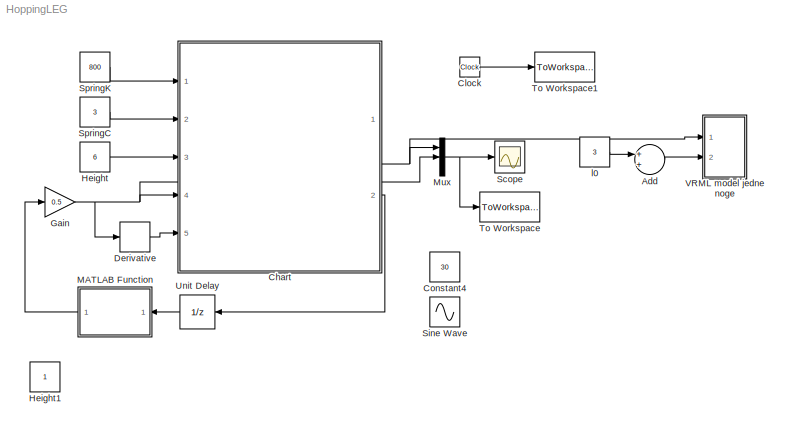
MODEL HoppingLEG
KIND model
BLOCK [Sum] Add
  InputSameDT = off
  OutDataTypeStr = Inherit: Inherit via internal rule
  Ports = [2, 1]
  SID = 80
  SaturateOnIntegerOverflow = off
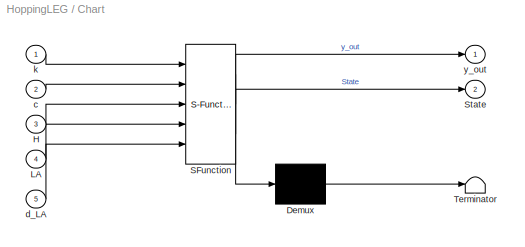
BLOCK [SubSystem] Chart
  ErrorFcn = Stateflow.Translate.translate
  FunctionWithSeparateData = off
  MaskDescription = Stateflow diagram
  MaskDisplay = plot(sf('Private','sfblk','xIcon'),sf('Private','sfblk','yIcon'));text(0.5,0,sf('Private', 'sfblk', 'tIcon'),'HorizontalAl','Center','VerticalAl','Bottom');
  MaskHideContents = off
  MaskIconFrame = off
  MaskIconOpaque = off
  MaskIconRotate = none
  MaskIconUnits = autoscale
  MaskPortRotate = default
  MaskSelfModifiable = on
  MaskType = Stateflow
  MinAlgLoopOccurrences = off
  Opaque = off
  PermitHierarchicalResolution = ExplicitOnly
  Ports = [5, 2]
  PropExecContextOutsideSubsystem = off
  RTWSystemCode = Auto
  RequestExecContextInheritance = off
  SID = 1
  TreatAsAtomicUnit = on
BLOCK [Demux] Chart/ Demux 
  Outputs = 1
  Ports = [1, 1]
  SID = 1::14
BLOCK [S-Function] Chart/ SFunction 
  EnableBusSupport = on
  FunctionName = sf_sfun
  PortCounts = [5 3]
  Ports = [5, 3]
  SID = 1::13
  Tag = Stateflow S-Function HoppingLEG 1
BLOCK [Terminator] Chart/ Terminator 
  SID = 1::18
BLOCK [Inport] Chart/H
  IconDisplay = Port number
  Port = 3
  SID = 1::28
BLOCK [Inport] Chart/LA
  IconDisplay = Port number
  Port = 4
  SID = 1::25
BLOCK [Outport] Chart/State
  IconDisplay = Port number
  Port = 2
  SID = 1::30
BLOCK [Inport] Chart/c
  IconDisplay = Port number
  Port = 2
  SID = 1::27
BLOCK [Inport] Chart/d_LA
  IconDisplay = Port number
  Port = 5
  SID = 1::24
BLOCK [Inport] Chart/k
  IconDisplay = Port number
  SID = 1::29
BLOCK [Outport] Chart/y_out
  IconDisplay = Port number
  SID = 1::20
BLOCK [Clock] Clock
  Decimation = 10
  SID = 14
BLOCK [Constant] Constant4
  SID = 59
  Value = 30
BLOCK [Derivative] Derivative
  SID = 6
BLOCK [Gain] Gain
  Gain = 0.5
  OutDataTypeStr = Inherit: Inherit via internal rule
  ParamDataTypeStr = Inherit: Inherit via internal rule
  SID = 25
  SaturateOnIntegerOverflow = off
BLOCK [Constant] Height
  SID = 21
  Value = 6
BLOCK [Constant] Height1
  SID = 78
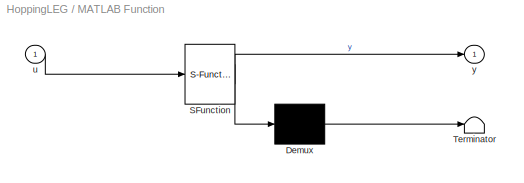
BLOCK [SubSystem] MATLAB Function
  ErrorFcn = Stateflow.Translate.translate
  FunctionWithSeparateData = off
  MaskDescription = Embedded MATLAB block
  MaskDisplay = bgColor = Simulink.Root.ColorString2Rgb(get_param(gcbh, 'BackgroundColor')); image(imread('private/eml_membrane_16.png','png','BackgroundColor',bgColor(1:3)),'center'); disp([10 10 'fcn']);
  MaskHideContents = off
  MaskIconFrame = on
  MaskIconOpaque = off
  MaskIconRotate = none
  MaskIconUnits = normalized
  MaskPortRotate = default
  MaskSelfModifiable = on
  MaskType = Stateflow
  MinAlgLoopOccurrences = off
  Opaque = off
  PermitHierarchicalResolution = ExplicitOnly
  Ports = [1, 1]
  PropExecContextOutsideSubsystem = off
  RTWSystemCode = Auto
  RequestExecContextInheritance = off
  SID = 58
  TreatAsAtomicUnit = on
BLOCK [Demux] MATLAB Function/ Demux 
  Outputs = 1
  Ports = [1, 1]
  SID = 58::15
BLOCK [S-Function] MATLAB Function/ SFunction 
  EnableBusSupport = on
  FunctionName = sf_sfun
  PortCounts = [1 2]
  Ports = [1, 2]
  SID = 58::14
  Tag = Stateflow S-Function HoppingLEG 2
BLOCK [Terminator] MATLAB Function/ Terminator 
  SID = 58::17
BLOCK [Inport] MATLAB Function/u
  IconDisplay = Port number
  SID = 58::1
BLOCK [Outport] MATLAB Function/y
  IconDisplay = Port number
  SID = 58::5
BLOCK [Mux] Mux
  DisplayOption = bar
  Inputs = 3
  Ports = [3, 1]
  SID = 7
BLOCK [Scope] Scope
  DataFormat = StructureWithTime
  Floating = off
  NumInputPorts = 1
  Ports = [1]
  SID = 2
  SampleTime = 0
  TimeRange = 5
  YMax = 27.5
  YMin = 0
BLOCK [Sin] Sine Wave
  Amplitude = 5
  Frequency = 0.3
  Ports = [0, 1]
  SID = 60
  SampleTime = 0
BLOCK [Constant] SpringC
  SID = 20
  Value = 3
BLOCK [Constant] SpringK
  SID = 19
  Value = 800
BLOCK [ToWorkspace] To Workspace
  MaxDataPoints = inf
  Ports = [1]
  SID = 13
  SampleTime = Td
  SaveFormat = Array
  VariableName = output
BLOCK [ToWorkspace] To Workspace1
  MaxDataPoints = inf
  Ports = [1]
  SID = 15
  SampleTime = Td
  SaveFormat = Array
  VariableName = t
BLOCK [UnitDelay] Unit Delay
  InputProcessing = Elements as channels (sample based)
  SID = 24
  SampleTime = -1
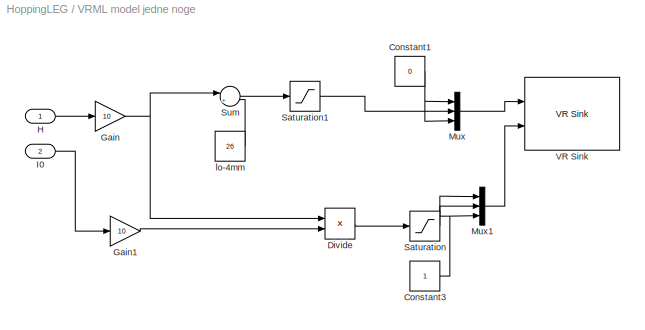
BLOCK [SubSystem] VRML model jedne noge
  FunctionWithSeparateData = off
  MaskHideContents = off
  MinAlgLoopOccurrences = off
  Opaque = off
  Ports = [2]
  PropExecContextOutsideSubsystem = off
  RTWSystemCode = Auto
  RequestExecContextInheritance = off
  SID = 62
BLOCK [Constant] VRML model jedne noge/Constant1
  SID = 65
  Value = 0
BLOCK [Constant] VRML model jedne noge/Constant3
  SID = 66
BLOCK [Product] VRML model jedne noge/Divide
  InputSameDT = off
  Inputs = */
  OutDataTypeStr = Inherit: Inherit via internal rule
  Ports = [2, 1]
  RndMeth = Floor
  SID = 67
  SaturateOnIntegerOverflow = off
BLOCK [Gain] VRML model jedne noge/Gain
  Gain = 10
  OutDataTypeStr = Inherit: Inherit via internal rule
  ParamDataTypeStr = Inherit: Inherit via internal rule
  SID = 76
  SaturateOnIntegerOverflow = off
BLOCK [Gain] VRML model jedne noge/Gain1
  Gain = 10
  OutDataTypeStr = Inherit: Inherit via internal rule
  ParamDataTypeStr = Inherit: Inherit via internal rule
  SID = 77
  SaturateOnIntegerOverflow = off
BLOCK [Inport] VRML model jedne noge/H
  IconDisplay = Port number
  SID = 63
BLOCK [Inport] VRML model jedne noge/I0
  IconDisplay = Port number
  Port = 2
  SID = 64
BLOCK [Mux] VRML model jedne noge/Mux
  DisplayOption = bar
  Inputs = 3
  Ports = [3, 1]
  SID = 68
BLOCK [Mux] VRML model jedne noge/Mux1
  DisplayOption = bar
  Inputs = 3
  Ports = [3, 1]
  SID = 69
BLOCK [Saturate] VRML model jedne noge/Saturation
  InputPortMap = u0
  LowerLimit = 0.5
  Ports = [1, 1]
  SID = 70
  UpperLimit = 1
BLOCK [Saturate] VRML model jedne noge/Saturation1
  InputPortMap = u0
  LowerLimit = 4
  Ports = [1, 1]
  SID = 71
  UpperLimit = 10000
BLOCK [Sum] VRML model jedne noge/Sum
  IconShape = round
  InputSameDT = off
  Inputs = |+-
  OutDataTypeStr = Inherit: Inherit via internal rule
  Ports = [2, 1]
  SID = 72
  SaturateOnIntegerOverflow = off
BLOCK [Reference] VRML model jedne noge/VR Sink  REF=vrlib/VR Sink
  AutoView = off
  FieldsWritten = ALFA.translation.3.1.1.double#Opruga.scale.3.1.1.double
  Ports = [2]
  RemoteChange = off
  RemoteView = on
  SID = 73
  SampleTime = -1
  SourceBlock = vrlib/VR Sink
  SourceType = Virtual Reality Sink
  VideoDimensions = []
  ViewEnable = on
  WorldFileName = <path>
BLOCK [Constant] VRML model jedne noge/lo-4mm
  SID = 74
  Value = 26
BLOCK [Constant] l0
  SID = 75
  Value = 3
LINE Add:1 -> VRML model jedne noge:2
LINE Chart/ Demux :1 -> Chart/ Terminator :1
LINE Chart/ SFunction :1 -> Chart/ Demux :1
LINE Chart/ SFunction :2 -> Chart/y_out:1
LINE Chart/ SFunction :3 -> Chart/State:1
LINE Chart/H:1 -> Chart/ SFunction :3
LINE Chart/LA:1 -> Chart/ SFunction :4
LINE Chart/c:1 -> Chart/ SFunction :2
LINE Chart/d_LA:1 -> Chart/ SFunction :5
LINE Chart/k:1 -> Chart/ SFunction :1
NET Chart:1 -> Mux:1, VRML model jedne noge:1
LINE Chart:2 -> Unit Delay:1
LINE Clock:1 -> To Workspace1:1
LINE Derivative:1 -> Chart:5
NET Gain:1 -> Chart:4, Derivative:1, Mux:2
LINE Height:1 -> Chart:3
LINE MATLAB Function/ Demux :1 -> MATLAB Function/ Terminator :1
LINE MATLAB Function/ SFunction :1 -> MATLAB Function/ Demux :1
LINE MATLAB Function/ SFunction :2 -> MATLAB Function/y:1
LINE MATLAB Function/u:1 -> MATLAB Function/ SFunction :1
LINE MATLAB Function:1 -> Gain:1
NET Mux:1 -> Scope:1, To Workspace:1
LINE SpringC:1 -> Chart:2
LINE SpringK:1 -> Chart:1
LINE Unit Delay:1 -> MATLAB Function:1
NET VRML model jedne noge/Constant1:1 -> VRML model jedne noge/Mux:1, VRML model jedne noge/Mux:3
NET VRML model jedne noge/Constant3:1 -> VRML model jedne noge/Mux1:1, VRML model jedne noge/Mux1:3
LINE VRML model jedne noge/Divide:1 -> VRML model jedne noge/Saturation:1
LINE VRML model jedne noge/Gain1:1 -> VRML model jedne noge/Divide:2
NET VRML model jedne noge/Gain:1 -> VRML model jedne noge/Divide:1, VRML model jedne noge/Sum:1
LINE VRML model jedne noge/H:1 -> VRML model jedne noge/Gain:1
LINE VRML model jedne noge/I0:1 -> VRML model jedne noge/Gain1:1
LINE VRML model jedne noge/Mux1:1 -> VRML model jedne noge/VR Sink:2
LINE VRML model jedne noge/Mux:1 -> VRML model jedne noge/VR Sink:1
LINE VRML model jedne noge/Saturation1:1 -> VRML model jedne noge/Mux:2
LINE VRML model jedne noge/Saturation:1 -> VRML model jedne noge/Mux1:2
LINE VRML model jedne noge/Sum:1 -> VRML model jedne noge/Saturation1:1
LINE VRML model jedne noge/lo-4mm:1 -> VRML model jedne noge/Sum:2
LINE l0:1 -> Add:1
note: NET lines group one-source signal fan-out (src -> all destinations, sorted); 1:1 wires keep LINE
CHART Chart states=2 transitions=3
  STATE_LABEL 'Swing\\ndu:\\ny_dot=yv;\\nyv_dot=-9.81;\\n//output\\ny_out = y;\\nState=0;'
  STATE_LABEL 'Stancedown\\ndu:\\nl_dot = lv;\\nlv_dot =k/mass*(l0+LA-l)-9.81-c/mass*lv+c/mass*d_LA;\\ny_out = l;\\nState = 1;'
CHART MATLAB Function states=1 transitions=1
  STATE_LABEL 'eML_blk_kernel()'
note: 1 file-system path scrubbed to <path> (not preserved elsewhere — flat text is the only slx artifact)
